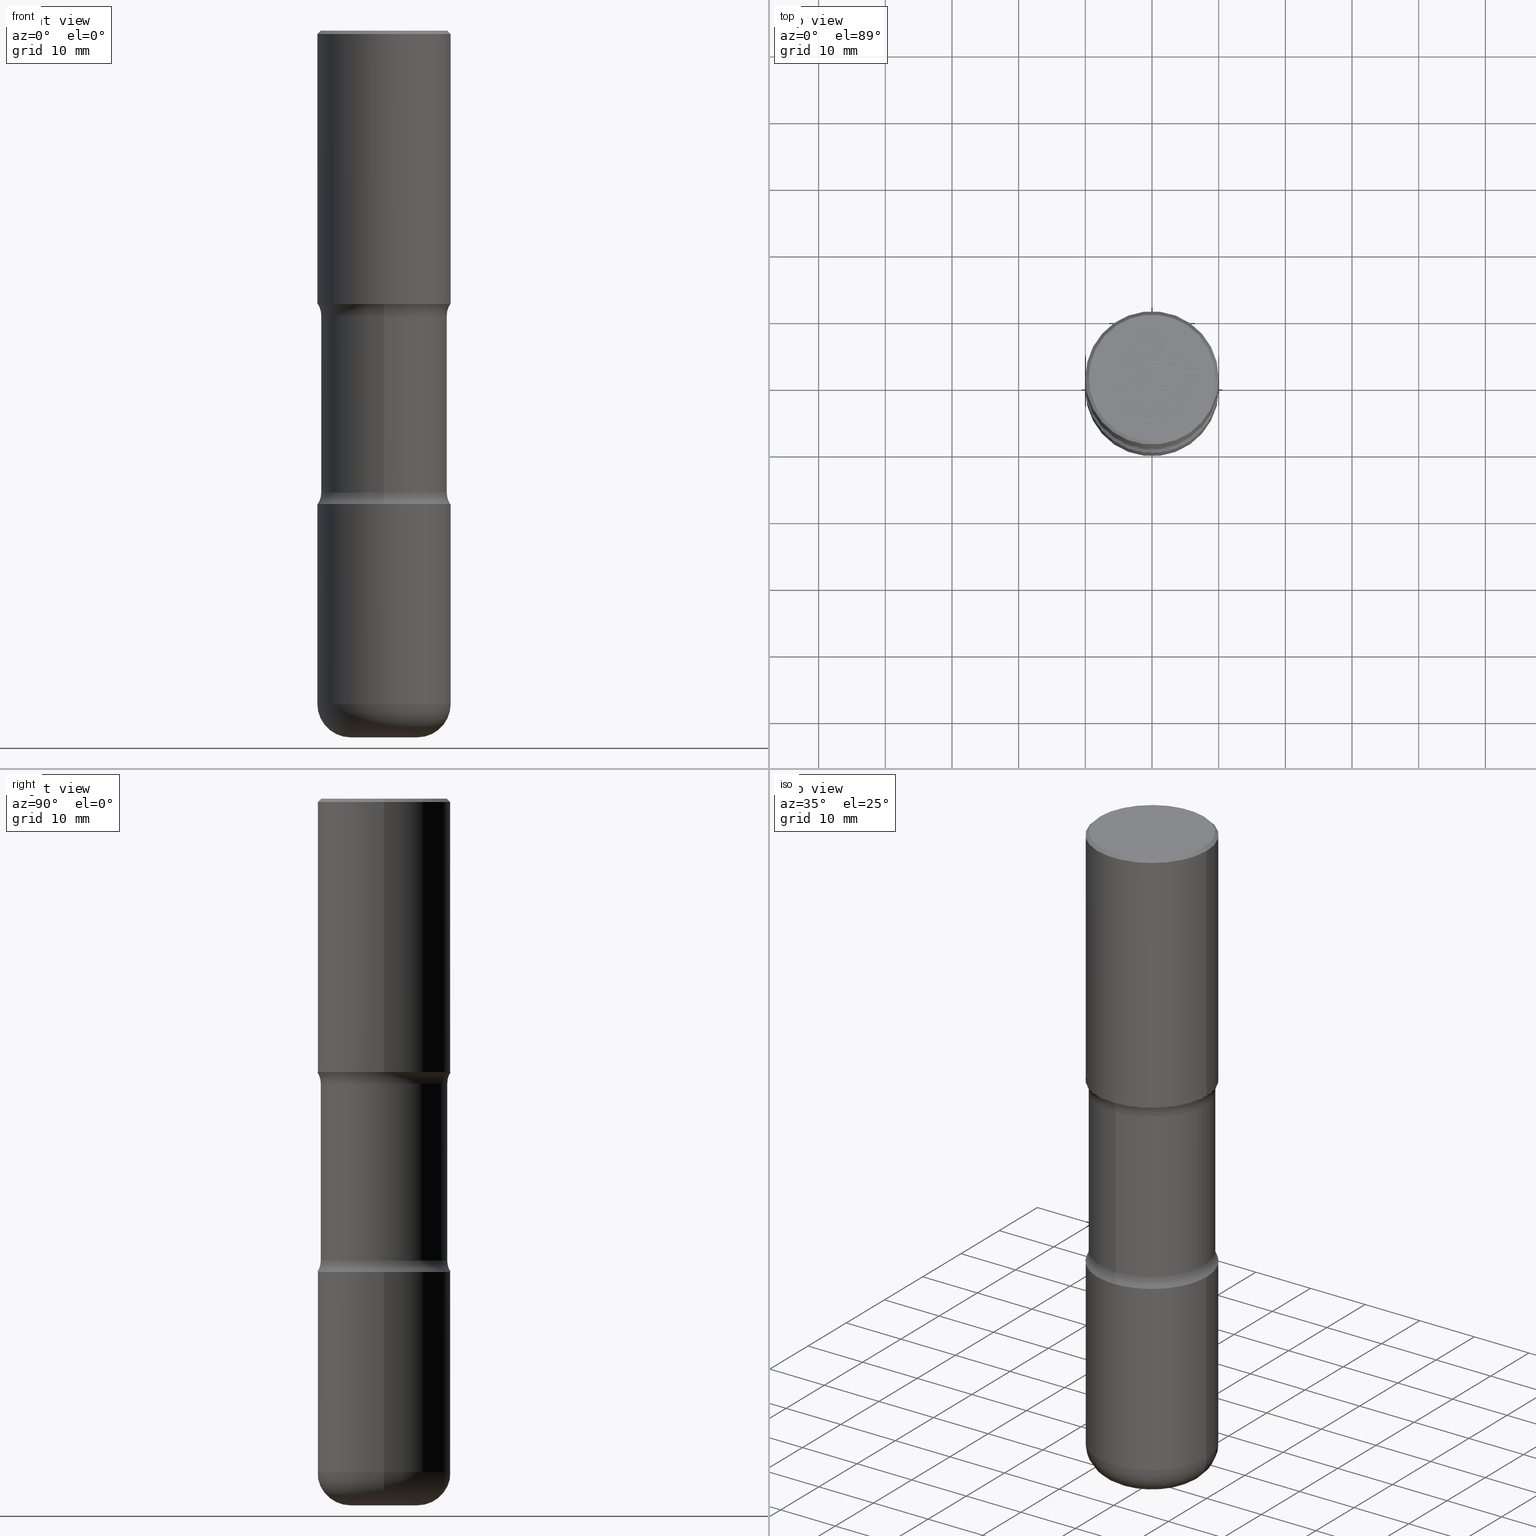
[diagram: canonical four-view strip — front | top / right | iso, engineering-drawing reading convention]
A machine part, canonical four-view strip (front | top / right | iso — engineering-drawing reading convention). The complete STEP part file that produces these views, byte-faithful:
ISO-10303-21;
HEADER;
FILE_DESCRIPTION (( 'STEP AP203' ),
    '1' );
FILE_NAME ('44997.STEP',
    '2024-03-02T04:28:52',
    ( '' ),
    ( '' ),
    'SwSTEP 2.0',
    'SolidWorks 2023',
    '' );
FILE_SCHEMA (( 'CONFIG_CONTROL_DESIGN' ));
ENDSEC;

DATA;
#1 = PERSON ( 'UNSPECIFIED', 'UNSPECIFIED', 'UNSPECIFIED', ('UNSPECIFIED'), ('UNSPECIFIED'), ('UNSPECIFIED') ) ;
#2 = DIRECTION ( 'NONE',  ( 6.860497997771532351E-15, 1.000000000000000000, 0.000000000000000000 ) ) ;
#3 = DIRECTION ( 'NONE',  ( 1.000000000000000000, -6.982962677686266711E-15, 0.000000000000000000 ) ) ;
#4 = ADVANCED_FACE ( 'NONE', ( #287 ), #169, .F. ) ;
#5 = CARTESIAN_POINT ( 'NONE',  ( -0.3937000000000003830, 2.797406750687517153E-15, -1.936584745033358137E-29 ) ) ;
#6 = CLOSED_SHELL ( 'NONE', ( #304, #487, #409, #138, #331, #45, #387, #517 ) ) ;
#7 = TOROIDAL_SURFACE ( 'NONE', #460, 0.4985000000000002762, 0.1250000000000001665 ) ;
#8 = DIRECTION ( 'NONE',  ( 6.982962677686265922E-15, 1.000000000000000000, -2.775563112689115117E-15 ) ) ;
#9 = APPROVAL_DATE_TIME ( #436, #512 ) ;
#10 = FACE_OUTER_BOUND ( 'NONE', #268, .T. ) ;
#11 = EDGE_CURVE ( 'NONE', #167, #198, #335, .T. ) ;
#12 = EDGE_LOOP ( 'NONE', ( #240, #161, #22, #397 ) ) ;
#13 = COORDINATED_UNIVERSAL_TIME_OFFSET ( 5, 0, .BEHIND. ) ;
#14 = FACE_OUTER_BOUND ( 'NONE', #525, .T. ) ;
#15 = EDGE_LOOP ( 'NONE', ( #108, #486 ) ) ;
#16 = AXIS2_PLACEMENT_3D ( 'NONE', #340, #427, #518 ) ;
#17 = LOCAL_TIME ( 23, 28, 52.00000000000000000, #13 ) ;
#18 = CARTESIAN_POINT ( 'NONE',  ( 3.947231200063429727E-29, -5.635600029026721857E-15, -1.614100000000000090 ) ) ;
#19 = EDGE_LOOP ( 'NONE', ( #74, #60, #300, #379 ) ) ;
#20 = EDGE_CURVE ( 'NONE', #401, #432, #361, .T. ) ;
#21 = DIRECTION ( 'NONE',  ( 1.000000000000000000, -6.860497997771530774E-15, 4.841709315645876741E-29 ) ) ;
#22 = ORIENTED_EDGE ( 'NONE', *, *, #38, .F. ) ;
#23 = FACE_OUTER_BOUND ( 'NONE', #151, .T. ) ;
#24 = ORIENTED_EDGE ( 'NONE', *, *, #453, .F. ) ;
#25 = APPROVAL_STATUS ( 'not_yet_approved' ) ;
#26 = CIRCLE ( 'NONE', #305, 0.1968000000000006133 ) ;
#27 = DIRECTION ( 'NONE',  ( 2.497382066111305685E-29, -3.417138595909611452E-15, -1.000000000000000000 ) ) ;
#28 = EDGE_LOOP ( 'NONE', ( #452, #456, #228, #482 ) ) ;
#29 = DIRECTION ( 'NONE',  ( 2.497382066111305685E-29, -3.417138595909611452E-15, -1.000000000000000000 ) ) ;
#30 = EDGE_CURVE ( 'NONE', #221, #497, #374, .T. ) ;
#31 = CARTESIAN_POINT ( 'NONE',  ( 4.890937612370289799E-31, -6.982962677686315028E-17, -0.02000000000000006981 ) ) ;
#32 = DIRECTION ( 'NONE',  ( -2.497382066111305685E-29, 3.417138595909611452E-15, 1.000000000000000000 ) ) ;
#33 = CIRCLE ( 'NONE', #103, 0.3735000000000001097 ) ;
#34 = AXIS2_PLACEMENT_3D ( 'NONE', #490, #359, #524 ) ;
#35 = LINE ( 'NONE', #551, #281 ) ;
#36 = CC_DESIGN_APPROVAL ( #266, ( #157 ) ) ;
#37 = CARTESIAN_POINT ( 'NONE',  ( 2.609533152651358987E-15, 0.3737000000000002542, -1.298363807590533784E-15 ) ) ;
#38 = EDGE_CURVE ( 'NONE', #111, #277, #447, .T. ) ;
#39 = DIRECTION ( 'NONE',  ( 0.7071067811865459074, -7.319954787623249734E-15, -0.7071067811865491270 ) ) ;
#40 = FACE_OUTER_BOUND ( 'NONE', #279, .T. ) ;
#41 = CARTESIAN_POINT ( 'NONE',  ( 0.3937000000000004385, -2.749192406205086372E-15, 1.919750796630862133E-29 ) ) ;
#42 = AXIS2_PLACEMENT_3D ( 'NONE', #166, #418, #325 ) ;
#43 = DIRECTION ( 'NONE',  ( 6.982962677686265922E-15, 1.000000000000000000, -3.469453890861391629E-15 ) ) ;
#44 = CARTESIAN_POINT ( 'NONE',  ( 2.608136560115861621E-15, 0.3734999999999941700, -1.682231930840100809 ) ) ;
#45 = ADVANCED_FACE ( 'NONE', ( #40 ), #474, .F. ) ;
#46 = DIRECTION ( 'NONE',  ( -2.445468806185136877E-29, 3.491481338843145188E-15, 1.000000000000000000 ) ) ;
#47 = EDGE_LOOP ( 'NONE', ( #96, #149, #258, #286 ) ) ;
#48 = DIRECTION ( 'NONE',  ( 2.497382066111305685E-29, -3.417138595909611452E-15, -1.000000000000000000 ) ) ;
#49 = AXIS2_PLACEMENT_3D ( 'NONE', #215, #175, #337 ) ;
#50 = LOCAL_TIME ( 23, 28, 52.00000000000000000, #72 ) ;
#51 = EDGE_CURVE ( 'NONE', #555, #93, #33, .T. ) ;
#52 = PLANE ( 'NONE',  #58 ) ;
#53 = DIRECTION ( 'NONE',  ( 1.000000000000000000, -6.982962677686266711E-15, 4.876176775795935793E-29 ) ) ;
#54 = ORIENTED_EDGE ( 'NONE', *, *, #195, .F. ) ;
#55 = DIRECTION ( 'NONE',  ( 2.497382066111305685E-29, -3.417138595909611452E-15, -1.000000000000000000 ) ) ;
#56 = AXIS2_PLACEMENT_3D ( 'NONE', #553, #332, #369 ) ;
#57 = ORIENTED_EDGE ( 'NONE', *, *, #11, .T. ) ;
#58 = AXIS2_PLACEMENT_3D ( 'NONE', #18, #314, #154 ) ;
#59 = CARTESIAN_POINT ( 'NONE',  ( 3.947231200063429727E-29, -5.635600029026721857E-15, -1.614100000000000090 ) ) ;
#60 = ORIENTED_EDGE ( 'NONE', *, *, #469, .T. ) ;
#61 = CARTESIAN_POINT ( 'NONE',  ( 9.723917614033958359E-29, -1.388317724764199912E-14, -3.976299999999999724 ) ) ;
#62 = PERSON_AND_ORGANIZATION ( #1, #528 ) ;
#63 = ORIENTED_EDGE ( 'NONE', *, *, #426, .T. ) ;
#64 = DIRECTION ( 'NONE',  ( 2.497382066111305685E-29, -3.417138595909611452E-15, -1.000000000000000000 ) ) ;
#65 = DATE_TIME_ROLE ( 'classification_date' ) ;
#66 = LINE ( 'NONE', #378, #390 ) ;
#67 = ADVANCED_FACE ( 'NONE', ( #414 ), #117, .T. ) ;
#68 = PERSON_AND_ORGANIZATION_ROLE ( 'classification_officer' ) ;
#69 = DIRECTION ( 'NONE',  ( 6.982962677686265922E-15, 1.000000000000000000, -3.657092360996335267E-15 ) ) ;
#70 =( LENGTH_UNIT ( ) NAMED_UNIT ( * ) SI_UNIT ( $, .METRE. ) );
#71 = EDGE_LOOP ( 'NONE', ( #508, #124, #541, #489 ) ) ;
#72 = COORDINATED_UNIVERSAL_TIME_OFFSET ( 5, 0, .BEHIND. ) ;
#73 = CARTESIAN_POINT ( 'NONE',  ( 2.749192406205152242E-15, 0.3936999999999903910, -2.795200000000001239 ) ) ;
#74 = ORIENTED_EDGE ( 'NONE', *, *, #557, .T. ) ;
#75 = DESIGN_CONTEXT ( 'detailed design', #159, 'design' ) ;
#76 = CARTESIAN_POINT ( 'NONE',  ( 0.000000000000000000, 0.000000000000000000, 0.000000000000000000 ) ) ;
#77 = CIRCLE ( 'NONE', #42, 0.1249999999999999584 ) ;
#78 =( GEOMETRIC_REPRESENTATION_CONTEXT ( 3 ) GLOBAL_UNCERTAINTY_ASSIGNED_CONTEXT ( ( #121 ) ) GLOBAL_UNIT_ASSIGNED_CONTEXT ( ( #109, #201, #509 ) ) REPRESENTATION_CONTEXT ( 'NONE', 'WORKASPACE' ) );
#79 = DIRECTION ( 'NONE',  ( -6.982962677686266711E-15, -1.000000000000000000, 3.491481338843145583E-15 ) ) ;
#80 = DIRECTION ( 'NONE',  ( 1.000000000000000000, -6.982962677686264344E-15, 4.883557194083112340E-29 ) ) ;
#81 = FACE_OUTER_BOUND ( 'NONE', #323, .T. ) ;
#82 = AXIS2_PLACEMENT_3D ( 'NONE', #511, #129, #80 ) ;
#83 = EDGE_CURVE ( 'NONE', #531, #432, #504, .T. ) ;
#84 = DIRECTION ( 'NONE',  ( 1.000000000000000000, -6.982962677686266711E-15, 4.876176775795935793E-29 ) ) ;
#85 = FACE_OUTER_BOUND ( 'NONE', #366, .T. ) ;
#86 = LENGTH_MEASURE_WITH_UNIT ( LENGTH_MEASURE( 0.02539999999999999897 ), #70 );
#87 = DIRECTION ( 'NONE',  ( 2.497382066111305685E-29, -3.417138595909611452E-15, -1.000000000000000000 ) ) ;
#88 = PRODUCT_RELATED_PRODUCT_CATEGORY ( 'detail', '', ( #321 ) ) ;
#89 = COORDINATED_UNIVERSAL_TIME_OFFSET ( 5, 0, .BEHIND. ) ;
#90 = EDGE_CURVE ( 'NONE', #93, #111, #372, .T. ) ;
#91 = CARTESIAN_POINT ( 'NONE',  ( 6.835574407048695164E-29, -9.759388638334361670E-15, -2.795200000000000351 ) ) ;
#92 = CIRCLE ( 'NONE', #173, 0.3937000000000006605 ) ;
#93 = VERTEX_POINT ( 'NONE', #44 ) ;
#94 = AXIS2_PLACEMENT_3D ( 'NONE', #461, #413, #543 ) ;
#95 = CYLINDRICAL_SURFACE ( 'NONE', #385, 0.3937000000000004385 ) ;
#96 = ORIENTED_EDGE ( 'NONE', *, *, #147, .F. ) ;
#97 = PERSON_AND_ORGANIZATION ( #1, #528 ) ;
#98 = ADVANCED_BREP_SHAPE_REPRESENTATION ( '44997', ( #542, #172, #165, #552 ), #78 ) ;
#99 = FACE_OUTER_BOUND ( 'NONE', #156, .T. ) ;
#100 = ORIENTED_EDGE ( 'NONE', *, *, #370, .T. ) ;
#101 = CARTESIAN_POINT ( 'NONE',  ( 0.3737000000000002542, -2.667287895133369937E-15, 1.280553747031968579E-17 ) ) ;
#102 = ADVANCED_FACE ( 'NONE', ( #431 ), #479, .T. ) ;
#103 = AXIS2_PLACEMENT_3D ( 'NONE', #171, #334, #69 ) ;
#104 = VERTEX_POINT ( 'NONE', #182 ) ;
#105 = VECTOR ( 'NONE', #389, 39.37007874015748143 ) ;
#106 = PRODUCT_DEFINITION_FORMATION_WITH_SPECIFIED_SOURCE ( 'ANY', '', #321, .NOT_KNOWN. ) ;
#107 = CARTESIAN_POINT ( 'NONE',  ( 0.3937000000000004385, -8.384792435231807440E-15, -1.614100000000000090 ) ) ;
#108 = ORIENTED_EDGE ( 'NONE', *, *, #557, .F. ) ;
#109 =( CONVERSION_BASED_UNIT ( 'INCH', #86 ) LENGTH_UNIT ( ) NAMED_UNIT ( #119 ) );
#110 = CARTESIAN_POINT ( 'NONE',  ( -2.631687031945092476E-15, -0.3735000000000094911, -2.727068069159900521 ) ) ;
#111 = VERTEX_POINT ( 'NONE', #294 ) ;
#112 = PERSON_AND_ORGANIZATION ( #1, #528 ) ;
#113 = EDGE_CURVE ( 'NONE', #277, #111, #428, .T. ) ;
#114 = DIRECTION ( 'NONE',  ( 6.982962677686265922E-15, 1.000000000000000000, -3.469453890861391629E-15 ) ) ;
#115 = CALENDAR_DATE ( 2024, 1, 3 ) ;
#116 = ORIENTED_EDGE ( 'NONE', *, *, #158, .T. ) ;
#117 = TOROIDAL_SURFACE ( 'NONE', #82, 0.1968000000000005856, 0.1969000000000001582 ) ;
#118 = APPROVAL_ROLE ( '' ) ;
#119 = DIMENSIONAL_EXPONENTS ( 1.000000000000000000, 0.000000000000000000, 0.000000000000000000, 0.000000000000000000, 0.000000000000000000, 0.000000000000000000, 0.000000000000000000 ) ;
#120 = EDGE_LOOP ( 'NONE', ( #412, #231, #425, #144 ) ) ;
#121 = UNCERTAINTY_MEASURE_WITH_UNIT (LENGTH_MEASURE( 1.000000000000000082E-05 ), #109, 'distance_accuracy_value', 'NONE');
#122 = DIRECTION ( 'NONE',  ( -1.000000000000000000, 7.105427357601006592E-15, 0.000000000000000000 ) ) ;
#123 = EDGE_CURVE ( 'NONE', #104, #355, #326, .T. ) ;
#124 = ORIENTED_EDGE ( 'NONE', *, *, #132, .F. ) ;
#125 = CARTESIAN_POINT ( 'NONE',  ( 1.027696689415007474E-28, -1.446820562349780459E-14, -4.173200000000000465 ) ) ;
#126 = CARTESIAN_POINT ( 'NONE',  ( 0.1968000000000005856, -1.525742430261066195E-14, -3.976299999999999724 ) ) ;
#127 = VECTOR ( 'NONE', #46, 39.37007874015748143 ) ;
#128 = LOCAL_TIME ( 23, 28, 52.00000000000000000, #301 ) ;
#129 = DIRECTION ( 'NONE',  ( -2.445468806185136597E-29, 3.491481338843145583E-15, 1.000000000000000000 ) ) ;
#130 = CARTESIAN_POINT ( 'NONE',  ( -2.700978061722584594E-15, -0.3937000000000099309, -2.795199999999999019 ) ) ;
#131 = ORIENTED_EDGE ( 'NONE', *, *, #188, .T. ) ;
#132 = EDGE_CURVE ( 'NONE', #491, #252, #292, .T. ) ;
#133 = FACE_OUTER_BOUND ( 'NONE', #28, .T. ) ;
#134 = AXIS2_PLACEMENT_3D ( 'NONE', #126, #79, #424 ) ;
#135 = AXIS2_PLACEMENT_3D ( 'NONE', #362, #485, #349 ) ;
#136 = DIRECTION ( 'NONE',  ( -2.445468806185136597E-29, 3.491481338843145583E-15, 1.000000000000000000 ) ) ;
#137 = CARTESIAN_POINT ( 'NONE',  ( 0.3937000000000002164, -2.770807688499516917E-15, -0.02000000000000006981 ) ) ;
#138 = ADVANCED_FACE ( 'NONE', ( #85 ), #186, .F. ) ;
#139 = ORIENTED_EDGE ( 'NONE', *, *, #346, .T. ) ;
#140 = LINE ( 'NONE', #41, #222 ) ;
#141 = DIRECTION ( 'NONE',  ( 2.497382066111305685E-29, -3.417138595909611452E-15, -1.000000000000000000 ) ) ;
#142 = CONICAL_SURFACE ( 'NONE', #477, 0.3937000000000002164, 0.7853981633974460586 ) ;
#143 = CIRCLE ( 'NONE', #34, 0.3937000000000004385 ) ;
#144 = ORIENTED_EDGE ( 'NONE', *, *, #113, .F. ) ;
#145 = DIRECTION ( 'NONE',  ( 2.497382066111305685E-29, -3.417138595909611452E-15, -1.000000000000000000 ) ) ;
#146 = ORIENTED_EDGE ( 'NONE', *, *, #147, .T. ) ;
#147 = EDGE_CURVE ( 'NONE', #252, #491, #199, .T. ) ;
#148 = FACE_OUTER_BOUND ( 'NONE', #71, .T. ) ;
#149 = ORIENTED_EDGE ( 'NONE', *, *, #358, .T. ) ;
#150 = DIRECTION ( 'NONE',  ( 2.497382066111305685E-29, -3.417138595909611452E-15, -1.000000000000000000 ) ) ;
#151 = EDGE_LOOP ( 'NONE', ( #248, #506, #131, #360 ) ) ;
#152 = CIRCLE ( 'NONE', #398, 0.1968000000000006133 ) ;
#153 = TOROIDAL_SURFACE ( 'NONE', #328, 0.1968000000000005856, 0.1969000000000001582 ) ;
#154 = DIRECTION ( 'NONE',  ( 1.000000000000000000, -6.982962677686265922E-15, 4.876176775795935793E-29 ) ) ;
#155 = PERSON_AND_ORGANIZATION_ROLE ( 'creator' ) ;
#156 = EDGE_LOOP ( 'NONE', ( #100, #442, #420, #329 ) ) ;
#157 = PRODUCT_DEFINITION ( 'UNKNOWN', '', #106, #75 ) ;
#158 = EDGE_CURVE ( 'NONE', #406, #187, #341, .T. ) ;
#159 = APPLICATION_CONTEXT ( 'configuration controlled 3d designs of mechanical parts and assemblies' ) ;
#160 = CARTESIAN_POINT ( 'NONE',  ( 0.3937000000000007160, -1.663236965384708707E-14, -3.976299999999999724 ) ) ;
#161 = ORIENTED_EDGE ( 'NONE', *, *, #445, .T. ) ;
#162 = DIRECTION ( 'NONE',  ( 6.982962677686265922E-15, 1.000000000000000000, -3.417138595909611452E-15 ) ) ;
#163 = ORIENTED_EDGE ( 'NONE', *, *, #527, .F. ) ;
#164 = DIRECTION ( 'NONE',  ( 1.000000000000000000, 0.000000000000000000, 0.000000000000000000 ) ) ;
#165 = MANIFOLD_SOLID_BREP ( 'Body-Move/Copy2[4]', #6 ) ;
#166 = CARTESIAN_POINT ( 'NONE',  ( 3.481006894826670204E-15, 0.4984999999999905063, -2.727068069159903185 ) ) ;
#167 = VERTEX_POINT ( 'NONE', #476 ) ;
#168 = FACE_OUTER_BOUND ( 'NONE', #120, .T. ) ;
#169 = PLANE ( 'NONE',  #296 ) ;
#170 = CARTESIAN_POINT ( 'NONE',  ( 3.481006894826646143E-15, 0.4984999999999942810, -1.682231930840101253 ) ) ;
#171 = CARTESIAN_POINT ( 'NONE',  ( 4.056067910974230799E-29, -5.956222493193065901E-15, -1.682231930840099476 ) ) ;
#172 = MANIFOLD_SOLID_BREP ( 'Body-Move/Copy2[2]', #313 ) ;
#173 = AXIS2_PLACEMENT_3D ( 'NONE', #61, #235, #395 ) ;
#174 = CC_DESIGN_SECURITY_CLASSIFICATION ( #365, ( #106 ) ) ;
#175 = DIRECTION ( 'NONE',  ( -2.445468806185136597E-29, 3.491481338843145583E-15, 1.000000000000000000 ) ) ;
#176 = CC_DESIGN_PERSON_AND_ORGANIZATION_ASSIGNMENT ( #455, #394, ( #106 ) ) ;
#177 = CARTESIAN_POINT ( 'NONE',  ( -2.700978061722616937E-15, -0.3937000000000062117, -1.614099999999998758 ) ) ;
#178 = DIRECTION ( 'NONE',  ( -1.000000000000000000, 6.982962677686266711E-15, 0.000000000000000000 ) ) ;
#179 = EDGE_CURVE ( 'NONE', #104, #167, #298, .T. ) ;
#180 = AXIS2_PLACEMENT_3D ( 'NONE', #170, #470, #333 ) ;
#181 = CARTESIAN_POINT ( 'NONE',  ( 1.020543042197181255E-28, -1.457064992326021483E-14, -4.173200000000000465 ) ) ;
#182 = CARTESIAN_POINT ( 'NONE',  ( -0.3937000000000004385, -5.530807721427478371E-17, -1.614100000000000090 ) ) ;
#183 = ORIENTED_EDGE ( 'NONE', *, *, #246, .T. ) ;
#184 = DATE_AND_TIME ( #308, #17 ) ;
#185 = CARTESIAN_POINT ( 'NONE',  ( -3.131554243005659264E-46, 4.471029511141341874E-32, 1.280553747030123384E-17 ) ) ;
#186 = TOROIDAL_SURFACE ( 'NONE', #207, 0.4985000000000002762, 0.1250000000000001665 ) ;
#187 = VERTEX_POINT ( 'NONE', #388 ) ;
#188 = EDGE_CURVE ( 'NONE', #497, #401, #140, .T. ) ;
#189 = DIRECTION ( 'NONE',  ( -1.000000000000000000, 6.982962677686265922E-15, -4.876176775795935793E-29 ) ) ;
#190 = EDGE_LOOP ( 'NONE', ( #545, #24 ) ) ;
#191 = FACE_OUTER_BOUND ( 'NONE', #15, .T. ) ;
#192 = ORIENTED_EDGE ( 'NONE', *, *, #527, .T. ) ;
#193 = CC_DESIGN_PERSON_AND_ORGANIZATION_ASSIGNMENT ( #112, #280, ( #157 ) ) ;
#194 = DIRECTION ( 'NONE',  ( -2.445468806185136597E-29, 3.491481338843145583E-15, 1.000000000000000000 ) ) ;
#195 = EDGE_CURVE ( 'NONE', #555, #245, #410, .T. ) ;
#196 = APPROVAL_ROLE ( '' ) ;
#197 = CLOSED_SHELL ( 'NONE', ( #324, #536, #285, #67, #377, #513 ) ) ;
#198 = VERTEX_POINT ( 'NONE', #137 ) ;
#199 = CIRCLE ( 'NONE', #241, 0.3937000000000002164 ) ;
#200 = DIRECTION ( 'NONE',  ( -2.445468806185136597E-29, 3.491481338843145583E-15, 1.000000000000000000 ) ) ;
#201 =( NAMED_UNIT ( * ) PLANE_ANGLE_UNIT ( ) SI_UNIT ( $, .RADIAN. ) );
#202 = DIRECTION ( 'NONE',  ( -1.000000000000000000, 6.982962677686265922E-15, -4.876176775795935793E-29 ) ) ;
#203 = CARTESIAN_POINT ( 'NONE',  ( -0.3937000000000007160, -1.108577049695447881E-14, -3.976299999999999724 ) ) ;
#204 = DIRECTION ( 'NONE',  ( -2.445468806185136877E-29, 3.491481338843145188E-15, 1.000000000000000000 ) ) ;
#205 = DIRECTION ( 'NONE',  ( 2.497382066111305685E-29, -3.417138595909611452E-15, -1.000000000000000000 ) ) ;
#206 = ORIENTED_EDGE ( 'NONE', *, *, #311, .T. ) ;
#207 = AXIS2_PLACEMENT_3D ( 'NONE', #523, #560, #435 ) ;
#208 = AXIS2_PLACEMENT_3D ( 'NONE', #507, #381, #122 ) ;
#209 = DIRECTION ( 'NONE',  ( 2.438088387897960049E-29, -3.491481338843145188E-15, -1.000000000000000000 ) ) ;
#210 = EDGE_LOOP ( 'NONE', ( #450, #350, #347, #357 ) ) ;
#211 = DATE_AND_TIME ( #422, #50 ) ;
#212 = CARTESIAN_POINT ( 'NONE',  ( -0.3937000000000002164, -9.023876192300660874E-15, -2.795200000000000351 ) ) ;
#213 = DIRECTION ( 'NONE',  ( -6.982962677686265922E-15, -1.000000000000000000, 3.417138595909611452E-15 ) ) ;
#214 = EDGE_CURVE ( 'NONE', #274, #221, #152, .T. ) ;
#215 = CARTESIAN_POINT ( 'NONE',  ( 0.000000000000000000, 0.000000000000000000, 0.000000000000000000 ) ) ;
#216 = CONICAL_SURFACE ( 'NONE', #526, 0.3937000000000002164, 0.7853981633974460586 ) ;
#217 = LOCAL_TIME ( 23, 28, 52.00000000000000000, #457 ) ;
#218 = CARTESIAN_POINT ( 'NONE',  ( 2.608136560115922758E-15, 0.3734999999999855103, -4.173200000000001353 ) ) ;
#219 = EDGE_CURVE ( 'NONE', #312, #245, #559, .T. ) ;
#220 = CARTESIAN_POINT ( 'NONE',  ( -3.419958251889069808E-15, -0.4985000000000063269, -1.682231930840097922 ) ) ;
#221 = VERTEX_POINT ( 'NONE', #224 ) ;
#222 = VECTOR ( 'NONE', #343, 39.37007874015748143 ) ;
#223 = CIRCLE ( 'NONE', #94, 0.3937000000000006605 ) ;
#224 = CARTESIAN_POINT ( 'NONE',  ( 0.1968000000000006133, -1.594489697822887608E-14, -4.173200000000000465 ) ) ;
#225 = APPROVAL_STATUS ( 'not_yet_approved' ) ;
#226 = PLANE ( 'NONE',  #297 ) ;
#227 = DIRECTION ( 'NONE',  ( 6.982962677686265922E-15, 1.000000000000000000, -3.417138595909611452E-15 ) ) ;
#228 = ORIENTED_EDGE ( 'NONE', *, *, #246, .F. ) ;
#229 = CARTESIAN_POINT ( 'NONE',  ( 1.027696689415007474E-28, -1.446820562349780459E-14, -4.173200000000000465 ) ) ;
#230 = AXIS2_PLACEMENT_3D ( 'NONE', #229, #150, #539 ) ;
#231 = ORIENTED_EDGE ( 'NONE', *, *, #51, .T. ) ;
#232 = LINE ( 'NONE', #535, #263 ) ;
#233 = ORIENTED_EDGE ( 'NONE', *, *, #453, .T. ) ;
#234 = ADVANCED_FACE ( 'NONE', ( #133 ), #383, .T. ) ;
#235 = DIRECTION ( 'NONE',  ( -2.445468806185136597E-29, 3.491481338843145583E-15, 1.000000000000000000 ) ) ;
#236 = APPROVAL_ROLE ( '' ) ;
#237 = ORIENTED_EDGE ( 'NONE', *, *, #219, .T. ) ;
#238 = CYLINDRICAL_SURFACE ( 'NONE', #493, 0.3734999999999999987 ) ;
#239 = PERSON_AND_ORGANIZATION ( #1, #528 ) ;
#240 = ORIENTED_EDGE ( 'NONE', *, *, #549, .T. ) ;
#241 = AXIS2_PLACEMENT_3D ( 'NONE', #516, #87, #392 ) ;
#242 = DIRECTION ( 'NONE',  ( 6.982962677686265922E-15, 1.000000000000000000, -3.417138595909611452E-15 ) ) ;
#243 = CARTESIAN_POINT ( 'NONE',  ( 4.126794496352893348E-29, -1.363851564462866640E-14, -2.795199999999999907 ) ) ;
#244 = LINE ( 'NONE', #510, #438 ) ;
#245 = VERTEX_POINT ( 'NONE', #177 ) ;
#246 = EDGE_CURVE ( 'NONE', #198, #167, #538, .T. ) ;
#247 = PLANE ( 'NONE',  #264 ) ;
#248 = ORIENTED_EDGE ( 'NONE', *, *, #83, .F. ) ;
#249 = AXIS2_PLACEMENT_3D ( 'NONE', #267, #141, #227 ) ;
#250 = DIRECTION ( 'NONE',  ( 0.000000000000000000, 0.000000000000000000, 1.000000000000000000 ) ) ;
#251 = CARTESIAN_POINT ( 'NONE',  ( 9.723917614033958359E-29, -1.388317724764199912E-14, -3.976299999999999724 ) ) ;
#252 = VERTEX_POINT ( 'NONE', #130 ) ;
#253 = CARTESIAN_POINT ( 'NONE',  ( -0.3937000000000004385, 2.797406750687517547E-15, -1.936584745033358417E-29 ) ) ;
#254 = CARTESIAN_POINT ( 'NONE',  ( 4.890937612370289799E-31, -6.982962677686315028E-17, -0.02000000000000006981 ) ) ;
#255 = VECTOR ( 'NONE', #204, 39.37007874015748143 ) ;
#256 = APPROVAL_PERSON_ORGANIZATION ( #262, #512, #196 ) ;
#257 = CARTESIAN_POINT ( 'NONE',  ( 3.947231200063429727E-29, -5.635600029026721857E-15, -1.614100000000000090 ) ) ;
#258 = ORIENTED_EDGE ( 'NONE', *, *, #113, .T. ) ;
#259 = DIRECTION ( 'NONE',  ( 1.000000000000000000, -6.982962677686266711E-15, 4.876212485538972316E-29 ) ) ;
#260 = ORIENTED_EDGE ( 'NONE', *, *, #311, .F. ) ;
#261 = DIRECTION ( 'NONE',  ( 1.000000000000000000, -6.982962677686269866E-15, 0.000000000000000000 ) ) ;
#262 = PERSON_AND_ORGANIZATION ( #1, #528 ) ;
#263 = VECTOR ( 'NONE', #449, 39.37007874015748143 ) ;
#264 = AXIS2_PLACEMENT_3D ( 'NONE', #556, #209, #288 ) ;
#265 = DIRECTION ( 'NONE',  ( 1.000000000000000000, -6.860497997771530774E-15, 4.841709315645876741E-29 ) ) ;
#266 = APPROVAL ( #25, 'UNSPECIFIED' ) ;
#267 = CARTESIAN_POINT ( 'NONE',  ( 6.621268914021895076E-29, -9.589803473068410880E-15, -2.727068069159901409 ) ) ;
#268 = EDGE_LOOP ( 'NONE', ( #537, #393 ) ) ;
#269 = DIRECTION ( 'NONE',  ( -2.445468806185136597E-29, 3.491481338843145583E-15, 1.000000000000000000 ) ) ;
#270 = ORIENTED_EDGE ( 'NONE', *, *, #51, .F. ) ;
#271 = AXIS2_PLACEMENT_3D ( 'NONE', #243, #32, #213 ) ;
#272 = CARTESIAN_POINT ( 'NONE',  ( 0.000000000000000000, 0.000000000000000000, 0.000000000000000000 ) ) ;
#273 = TOROIDAL_SURFACE ( 'NONE', #249, 0.4985000000000001097, 0.1249999999999999861 ) ;
#274 = VERTEX_POINT ( 'NONE', #475 ) ;
#275 = ADVANCED_FACE ( 'NONE', ( #81 ), #142, .T. ) ;
#276 = CARTESIAN_POINT ( 'NONE',  ( 1.020543042197181255E-28, -1.457064992326021483E-14, -4.173200000000000465 ) ) ;
#277 = VERTEX_POINT ( 'NONE', #110 ) ;
#278 = FACE_OUTER_BOUND ( 'NONE', #19, .T. ) ;
#279 = EDGE_LOOP ( 'NONE', ( #404, #146 ) ) ;
#280 = PERSON_AND_ORGANIZATION_ROLE ( 'creator' ) ;
#281 = VECTOR ( 'NONE', #39, 39.37007874015748143 ) ;
#282 = DIRECTION ( 'NONE',  ( 1.000000000000000000, -6.982962677686266711E-15, 0.000000000000000000 ) ) ;
#283 = PRODUCT_DEFINITION_SHAPE ( 'NONE', 'NONE',  #157 ) ;
#284 = CARTESIAN_POINT ( 'NONE',  ( -2.631687031945121663E-15, -0.3735000000000060494, -1.682231930840098144 ) ) ;
#285 = ADVANCED_FACE ( 'NONE', ( #191 ), #494, .T. ) ;
#286 = ORIENTED_EDGE ( 'NONE', *, *, #434, .F. ) ;
#287 = FACE_OUTER_BOUND ( 'NONE', #307, .T. ) ;
#288 = DIRECTION ( 'NONE',  ( -1.000000000000000000, 6.982962677686265922E-15, -4.876176775795935793E-29 ) ) ;
#289 = ORIENTED_EDGE ( 'NONE', *, *, #469, .F. ) ;
#290 = CC_DESIGN_PERSON_AND_ORGANIZATION_ASSIGNMENT ( #62, #68, ( #365 ) ) ;
#291 = EDGE_CURVE ( 'NONE', #187, #167, #232, .T. ) ;
#292 = CIRCLE ( 'NONE', #492, 0.3937000000000002164 ) ;
#293 = AXIS2_PLACEMENT_3D ( 'NONE', #467, #64, #242 ) ;
#294 = CARTESIAN_POINT ( 'NONE',  ( 2.608136560115886471E-15, 0.3734999999999905063, -2.727068069159902741 ) ) ;
#295 = DIRECTION ( 'NONE',  ( -2.445468806185136597E-29, 3.491481338843145583E-15, 1.000000000000000000 ) ) ;
#296 = AXIS2_PLACEMENT_3D ( 'NONE', #37, #472, #202 ) ;
#297 = AXIS2_PLACEMENT_3D ( 'NONE', #59, #55, #403 ) ;
#298 = LINE ( 'NONE', #5, #127 ) ;
#299 = DIRECTION ( 'NONE',  ( -2.445468806185136597E-29, 3.491481338843145583E-15, 1.000000000000000000 ) ) ;
#300 = ORIENTED_EDGE ( 'NONE', *, *, #370, .F. ) ;
#301 = COORDINATED_UNIVERSAL_TIME_OFFSET ( 5, 0, .BEHIND. ) ;
#302 = CARTESIAN_POINT ( 'NONE',  ( 3.885916448764630888E-29, -5.723406242705518712E-15, -1.614100000000000090 ) ) ;
#303 = ORIENTED_EDGE ( 'NONE', *, *, #158, .F. ) ;
#304 = ADVANCED_FACE ( 'NONE', ( #441 ), #439, .T. ) ;
#305 = AXIS2_PLACEMENT_3D ( 'NONE', #546, #200, #503 ) ;
#306 = DIRECTION ( 'NONE',  ( -2.445468806185136597E-29, 3.491481338843145583E-15, 1.000000000000000000 ) ) ;
#307 = EDGE_LOOP ( 'NONE', ( #206, #116 ) ) ;
#308 = CALENDAR_DATE ( 2024, 1, 3 ) ;
#309 = CARTESIAN_POINT ( 'NONE',  ( 2.749192406205125815E-15, 0.3936999999999947764, -1.614100000000001423 ) ) ;
#310 = ORIENTED_EDGE ( 'NONE', *, *, #214, .T. ) ;
#311 = EDGE_CURVE ( 'NONE', #187, #406, #550, .T. ) ;
#312 = VERTEX_POINT ( 'NONE', #309 ) ;
#313 = CLOSED_SHELL ( 'NONE', ( #234, #275, #417, #4, #339, #102 ) ) ;
#314 = DIRECTION ( 'NONE',  ( -2.438088387897960049E-29, 3.491481338843145188E-15, 1.000000000000000000 ) ) ;
#315 = CC_DESIGN_APPROVAL ( #512, ( #106 ) ) ;
#316 = ORIENTED_EDGE ( 'NONE', *, *, #291, .T. ) ;
#317 = DIRECTION ( 'NONE',  ( 1.000000000000000000, -6.982962677686266711E-15, 4.876176775795935793E-29 ) ) ;
#318 = DATE_TIME_ROLE ( 'creation_date' ) ;
#319 = ORIENTED_EDGE ( 'NONE', *, *, #496, .F. ) ;
#320 = PERSON_AND_ORGANIZATION ( #1, #528 ) ;
#321 = PRODUCT ( '44997', '44997', '', ( #548 ) ) ;
#322 = DIRECTION ( 'NONE',  ( 6.982962677686265922E-15, 1.000000000000000000, -3.657092360996335267E-15 ) ) ;
#323 = EDGE_LOOP ( 'NONE', ( #303, #63, #183, #533 ) ) ;
#324 = ADVANCED_FACE ( 'NONE', ( #99 ), #400, .T. ) ;
#325 = DIRECTION ( 'NONE',  ( -6.982962677686265133E-15, -1.000000000000000000, 0.000000000000000000 ) ) ;
#326 = CIRCLE ( 'NONE', #471, 0.3937000000000004385 ) ;
#327 = DIRECTION ( 'NONE',  ( -2.445468806185136597E-29, 3.491481338843145583E-15, 1.000000000000000000 ) ) ;
#328 = AXIS2_PLACEMENT_3D ( 'NONE', #251, #423, #454 ) ;
#329 = ORIENTED_EDGE ( 'NONE', *, *, #188, .F. ) ;
#330 = DIRECTION ( 'NONE',  ( -1.000000000000000000, 6.982962677686266711E-15, 0.000000000000000000 ) ) ;
#331 = ADVANCED_FACE ( 'NONE', ( #532 ), #226, .F. ) ;
#332 = DIRECTION ( 'NONE',  ( -2.445468806185136597E-29, 3.491481338843145583E-15, 1.000000000000000000 ) ) ;
#333 = DIRECTION ( 'NONE',  ( -6.982962677686265133E-15, -1.000000000000000000, 0.000000000000000000 ) ) ;
#334 = DIRECTION ( 'NONE',  ( 2.497382066111305685E-29, -3.417138595909611452E-15, -1.000000000000000000 ) ) ;
#335 = CIRCLE ( 'NONE', #458, 0.3937000000000002164 ) ;
#336 = AXIS2_PLACEMENT_3D ( 'NONE', #272, #269, #53 ) ;
#337 = DIRECTION ( 'NONE',  ( 1.000000000000000000, -6.982962677686266711E-15, 4.876176775795935793E-29 ) ) ;
#338 = DIRECTION ( 'NONE',  ( 2.445468806185136597E-29, -3.491481338843145583E-15, -1.000000000000000000 ) ) ;
#339 = ADVANCED_FACE ( 'NONE', ( #10 ), #52, .F. ) ;
#340 = CARTESIAN_POINT ( 'NONE',  ( 6.665422944839096374E-29, -9.526572387846816848E-15, -2.727068069159901409 ) ) ;
#341 = CIRCLE ( 'NONE', #419, 0.3737000000000002542 ) ;
#342 = CIRCLE ( 'NONE', #208, 0.1969000000000001860 ) ;
#343 = DIRECTION ( 'NONE',  ( -2.445468806185136877E-29, 3.491481338843145188E-15, 1.000000000000000000 ) ) ;
#344 = CC_DESIGN_DATE_AND_TIME_ASSIGNMENT ( #540, #318, ( #157 ) ) ;
#345 = DIRECTION ( 'NONE',  ( 2.497382066111305685E-29, -3.417138595909611452E-15, -1.000000000000000000 ) ) ;
#346 = EDGE_CURVE ( 'NONE', #432, #401, #375, .T. ) ;
#347 = ORIENTED_EDGE ( 'NONE', *, *, #480, .T. ) ;
#348 = APPROVAL_DATE_TIME ( #411, #534 ) ;
#349 = DIRECTION ( 'NONE',  ( 1.000000000000000000, -6.982962677686269866E-15, 0.000000000000000000 ) ) ;
#350 = ORIENTED_EDGE ( 'NONE', *, *, #123, .T. ) ;
#351 = SHAPE_DEFINITION_REPRESENTATION ( #283, #98 ) ;
#352 = AXIS2_PLACEMENT_3D ( 'NONE', #185, #306, #356 ) ;
#353 = LOCAL_TIME ( 23, 28, 52.00000000000000000, #89 ) ;
#354 = FACE_OUTER_BOUND ( 'NONE', #446, .T. ) ;
#355 = VERTEX_POINT ( 'NONE', #107 ) ;
#356 = DIRECTION ( 'NONE',  ( 1.000000000000000000, -6.982962677686266711E-15, 4.876212485538972316E-29 ) ) ;
#357 = ORIENTED_EDGE ( 'NONE', *, *, #11, .F. ) ;
#358 = EDGE_CURVE ( 'NONE', #252, #277, #448, .T. ) ;
#359 = DIRECTION ( 'NONE',  ( -2.445468806185136597E-29, 3.491481338843145583E-15, 1.000000000000000000 ) ) ;
#360 = ORIENTED_EDGE ( 'NONE', *, *, #346, .F. ) ;
#361 = CIRCLE ( 'NONE', #56, 0.3937000000000002164 ) ;
#362 = CARTESIAN_POINT ( 'NONE',  ( 6.835574407048695164E-29, -9.759388638334361670E-15, -2.795200000000000351 ) ) ;
#363 = AXIS2_PLACEMENT_3D ( 'NONE', #220, #265, #2 ) ;
#364 = CALENDAR_DATE ( 2024, 1, 3 ) ;
#365 = SECURITY_CLASSIFICATION ( '', '', #443 ) ;
#366 = EDGE_LOOP ( 'NONE', ( #54, #465, #192, #237 ) ) ;
#367 = APPLICATION_PROTOCOL_DEFINITION ( 'international standard', 'config_control_design', 1994, #529 ) ;
#368 = DIRECTION ( 'NONE',  ( -2.445468806185136877E-29, 3.491481338843145188E-15, 1.000000000000000000 ) ) ;
#369 = DIRECTION ( 'NONE',  ( 1.000000000000000000, -6.982962677686269866E-15, 0.000000000000000000 ) ) ;
#370 = EDGE_CURVE ( 'NONE', #497, #531, #92, .T. ) ;
#371 = CARTESIAN_POINT ( 'NONE',  ( 4.056067910974230799E-29, -5.956222493193065901E-15, -1.682231930840099476 ) ) ;
#372 = LINE ( 'NONE', #218, #105 ) ;
#373 = FACE_OUTER_BOUND ( 'NONE', #47, .T. ) ;
#374 = CIRCLE ( 'NONE', #134, 0.1969000000000001860 ) ;
#375 = CIRCLE ( 'NONE', #135, 0.3937000000000002164 ) ;
#376 = ORIENTED_EDGE ( 'NONE', *, *, #426, .F. ) ;
#377 = ADVANCED_FACE ( 'NONE', ( #23 ), #95, .T. ) ;
#378 = CARTESIAN_POINT ( 'NONE',  ( -2.562396002167563676E-15, -0.3735000000000144871, -4.173199999999998688 ) ) ;
#379 = ORIENTED_EDGE ( 'NONE', *, *, #30, .F. ) ;
#380 = PERSON_AND_ORGANIZATION ( #1, #528 ) ;
#381 = DIRECTION ( 'NONE',  ( 7.105427357601001859E-15, 1.000000000000000000, -3.491481338843145583E-15 ) ) ;
#382 = EDGE_LOOP ( 'NONE', ( #289, #310, #547, #319 ) ) ;
#383 = CYLINDRICAL_SURFACE ( 'NONE', #49, 0.3937000000000003830 ) ;
#384 = AXIS2_PLACEMENT_3D ( 'NONE', #302, #48, #43 ) ;
#385 = AXIS2_PLACEMENT_3D ( 'NONE', #405, #194, #317 ) ;
#386 = DIRECTION ( 'NONE',  ( -2.445468806185136597E-29, 3.491481338843145583E-15, 1.000000000000000000 ) ) ;
#387 = ADVANCED_FACE ( 'NONE', ( #148 ), #273, .F. ) ;
#388 = CARTESIAN_POINT ( 'NONE',  ( -0.3737000000000002542, 2.644447966039791030E-15, 1.280553747028286201E-17 ) ) ;
#389 = DIRECTION ( 'NONE',  ( 2.497382066111305685E-29, -3.417138595909611452E-15, -1.000000000000000000 ) ) ;
#390 = VECTOR ( 'NONE', #205, 39.37007874015748143 ) ;
#391 = CC_DESIGN_APPROVAL ( #534, ( #365 ) ) ;
#392 = DIRECTION ( 'NONE',  ( 6.982962677686265922E-15, 1.000000000000000000, -2.775563112689115117E-15 ) ) ;
#393 = ORIENTED_EDGE ( 'NONE', *, *, #123, .F. ) ;
#394 = PERSON_AND_ORGANIZATION_ROLE ( 'design_supplier' ) ;
#395 = DIRECTION ( 'NONE',  ( 1.000000000000000000, -6.982962677686266711E-15, 0.000000000000000000 ) ) ;
#396 = CARTESIAN_POINT ( 'NONE',  ( 0.3937000000000002164, -1.250858104453944804E-14, -2.795200000000000351 ) ) ;
#397 = ORIENTED_EDGE ( 'NONE', *, *, #90, .F. ) ;
#398 = AXIS2_PLACEMENT_3D ( 'NONE', #181, #299, #261 ) ;
#399 = AXIS2_PLACEMENT_3D ( 'NONE', #554, #415, #114 ) ;
#400 = CYLINDRICAL_SURFACE ( 'NONE', #336, 0.3937000000000004385 ) ;
#401 = VERTEX_POINT ( 'NONE', #396 ) ;
#402 = EDGE_CURVE ( 'NONE', #355, #104, #143, .T. ) ;
#403 = DIRECTION ( 'NONE',  ( 6.982962677686265922E-15, 1.000000000000000000, -3.417138595909611452E-15 ) ) ;
#404 = ORIENTED_EDGE ( 'NONE', *, *, #132, .T. ) ;
#405 = CARTESIAN_POINT ( 'NONE',  ( 0.000000000000000000, 0.000000000000000000, 0.000000000000000000 ) ) ;
#406 = VERTEX_POINT ( 'NONE', #101 ) ;
#407 = CC_DESIGN_DATE_AND_TIME_ASSIGNMENT ( #184, #65, ( #365 ) ) ;
#408 = DIRECTION ( 'NONE',  ( 6.982962677686265922E-15, 1.000000000000000000, -2.925673888797068924E-15 ) ) ;
#409 = ADVANCED_FACE ( 'NONE', ( #14 ), #7, .F. ) ;
#410 = CIRCLE ( 'NONE', #363, 0.1250000000000001665 ) ;
#411 = DATE_AND_TIME ( #115, #128 ) ;
#412 = ORIENTED_EDGE ( 'NONE', *, *, #445, .F. ) ;
#413 = DIRECTION ( 'NONE',  ( -2.445468806185136597E-29, 3.491481338843145583E-15, 1.000000000000000000 ) ) ;
#414 = FACE_OUTER_BOUND ( 'NONE', #382, .T. ) ;
#415 = DIRECTION ( 'NONE',  ( 2.497382066111305685E-29, -3.417138595909611452E-15, -1.000000000000000000 ) ) ;
#416 = DIRECTION ( 'NONE',  ( 2.497382066111305685E-29, -3.417138595909611452E-15, -1.000000000000000000 ) ) ;
#417 = ADVANCED_FACE ( 'NONE', ( #354 ), #216, .T. ) ;
#418 = DIRECTION ( 'NONE',  ( -1.000000000000000000, 6.982962677686265922E-15, -4.883557194083112340E-29 ) ) ;
#419 = AXIS2_PLACEMENT_3D ( 'NONE', #481, #136, #259 ) ;
#420 = ORIENTED_EDGE ( 'NONE', *, *, #20, .F. ) ;
#421 = APPROVAL_PERSON_ORGANIZATION ( #239, #534, #236 ) ;
#422 = CALENDAR_DATE ( 2024, 1, 3 ) ;
#423 = DIRECTION ( 'NONE',  ( -2.445468806185136597E-29, 3.491481338843145583E-15, 1.000000000000000000 ) ) ;
#424 = DIRECTION ( 'NONE',  ( 1.000000000000000000, -6.982962677686268288E-15, 0.000000000000000000 ) ) ;
#425 = ORIENTED_EDGE ( 'NONE', *, *, #90, .T. ) ;
#426 = EDGE_CURVE ( 'NONE', #406, #198, #35, .T. ) ;
#427 = DIRECTION ( 'NONE',  ( 2.497382066111305685E-29, -3.417138595909611452E-15, -1.000000000000000000 ) ) ;
#428 = CIRCLE ( 'NONE', #16, 0.3734999999999999987 ) ;
#429 = TOROIDAL_SURFACE ( 'NONE', #293, 0.4985000000000001097, 0.1249999999999999861 ) ;
#430 = DIRECTION ( 'NONE',  ( 1.000000000000000000, -6.982962677686265922E-15, 0.000000000000000000 ) ) ;
#431 = FACE_OUTER_BOUND ( 'NONE', #210, .T. ) ;
#432 = VERTEX_POINT ( 'NONE', #212 ) ;
#433 = CC_DESIGN_PERSON_AND_ORGANIZATION_ASSIGNMENT ( #97, #155, ( #106 ) ) ;
#434 = EDGE_CURVE ( 'NONE', #491, #111, #77, .T. ) ;
#435 = DIRECTION ( 'NONE',  ( 6.982962677686265922E-15, 1.000000000000000000, -3.417138595909611452E-15 ) ) ;
#436 = DATE_AND_TIME ( #364, #353 ) ;
#437 = AXIS2_PLACEMENT_3D ( 'NONE', #483, #386, #84 ) ;
#438 = VECTOR ( 'NONE', #368, 39.37007874015748143 ) ;
#439 = CYLINDRICAL_SURFACE ( 'NONE', #230, 0.3734999999999999987 ) ;
#440 = APPROVAL_STATUS ( 'not_yet_approved' ) ;
#441 = FACE_OUTER_BOUND ( 'NONE', #12, .T. ) ;
#442 = ORIENTED_EDGE ( 'NONE', *, *, #83, .T. ) ;
#443 = SECURITY_CLASSIFICATION_LEVEL ( 'unclassified' ) ;
#444 = DIRECTION ( 'NONE',  ( 2.438088387897960049E-29, -3.491481338843145188E-15, -1.000000000000000000 ) ) ;
#445 = EDGE_CURVE ( 'NONE', #555, #277, #66, .T. ) ;
#446 = EDGE_LOOP ( 'NONE', ( #376, #260, #316, #57 ) ) ;
#447 = CIRCLE ( 'NONE', #519, 0.3734999999999999987 ) ;
#448 = CIRCLE ( 'NONE', #520, 0.1249999999999999584 ) ;
#449 = DIRECTION ( 'NONE',  ( -0.7071067811865459074, 2.468850131082240100E-15, -0.7071067811865491270 ) ) ;
#450 = ORIENTED_EDGE ( 'NONE', *, *, #179, .F. ) ;
#451 = DIRECTION ( 'NONE',  ( 6.860497997771532351E-15, 1.000000000000000000, 0.000000000000000000 ) ) ;
#452 = ORIENTED_EDGE ( 'NONE', *, *, #402, .T. ) ;
#453 = EDGE_CURVE ( 'NONE', #245, #312, #473, .T. ) ;
#454 = DIRECTION ( 'NONE',  ( 1.000000000000000000, -6.982962677686264344E-15, 4.883557194083112340E-29 ) ) ;
#455 = PERSON_AND_ORGANIZATION ( #1, #528 ) ;
#456 = ORIENTED_EDGE ( 'NONE', *, *, #179, .T. ) ;
#457 = COORDINATED_UNIVERSAL_TIME_OFFSET ( 5, 0, .BEHIND. ) ;
#458 = AXIS2_PLACEMENT_3D ( 'NONE', #468, #327, #282 ) ;
#459 = CC_DESIGN_PERSON_AND_ORGANIZATION_ASSIGNMENT ( #380, #501, ( #321 ) ) ;
#460 = AXIS2_PLACEMENT_3D ( 'NONE', #530, #145, #162 ) ;
#461 = CARTESIAN_POINT ( 'NONE',  ( 9.723917614033958359E-29, -1.388317724764199912E-14, -3.976299999999999724 ) ) ;
#462 = APPROVAL_PERSON_ORGANIZATION ( #320, #266, #118 ) ;
#463 = AXIS2_PLACEMENT_3D ( 'NONE', #371, #27, #322 ) ;
#464 = DIRECTION ( 'NONE',  ( 6.982962677686265922E-15, 1.000000000000000000, -2.925673888797068924E-15 ) ) ;
#465 = ORIENTED_EDGE ( 'NONE', *, *, #549, .F. ) ;
#466 = APPLICATION_PROTOCOL_DEFINITION ( 'international standard', 'config_control_design', 1994, #159 ) ;
#467 = CARTESIAN_POINT ( 'NONE',  ( 6.621268914021895076E-29, -9.589803473068410880E-15, -2.727068069159901409 ) ) ;
#468 = CARTESIAN_POINT ( 'NONE',  ( 4.890937612370289799E-31, -6.982962677686315028E-17, -0.02000000000000006981 ) ) ;
#469 = EDGE_CURVE ( 'NONE', #274, #531, #342, .T. ) ;
#470 = DIRECTION ( 'NONE',  ( -1.000000000000000000, 6.982962677686265922E-15, -4.883557194083112340E-29 ) ) ;
#471 = AXIS2_PLACEMENT_3D ( 'NONE', #257, #522, #430 ) ;
#472 = DIRECTION ( 'NONE',  ( 2.438088387897960049E-29, -3.491481338843145188E-15, -1.000000000000000000 ) ) ;
#473 = CIRCLE ( 'NONE', #399, 0.3937000000000004940 ) ;
#474 = PLANE ( 'NONE',  #271 ) ;
#475 = CARTESIAN_POINT ( 'NONE',  ( -0.1968000000000006133, -1.212903615811940557E-14, -4.173200000000000465 ) ) ;
#476 = CARTESIAN_POINT ( 'NONE',  ( -0.3937000000000002164, 2.679362779428221496E-15, -0.02000000000000006981 ) ) ;
#477 = AXIS2_PLACEMENT_3D ( 'NONE', #254, #338, #178 ) ;
#478 = CIRCLE ( 'NONE', #463, 0.3735000000000001097 ) ;
#479 = CYLINDRICAL_SURFACE ( 'NONE', #437, 0.3937000000000003830 ) ;
#480 = EDGE_CURVE ( 'NONE', #355, #198, #244, .T. ) ;
#481 = CARTESIAN_POINT ( 'NONE',  ( -3.131554243005659264E-46, 4.471029511141341874E-32, 1.280553747030123384E-17 ) ) ;
#482 = ORIENTED_EDGE ( 'NONE', *, *, #480, .F. ) ;
#483 = CARTESIAN_POINT ( 'NONE',  ( 0.000000000000000000, 0.000000000000000000, 0.000000000000000000 ) ) ;
#484 = AXIS2_PLACEMENT_3D ( 'NONE', #276, #444, #189 ) ;
#485 = DIRECTION ( 'NONE',  ( -2.445468806185136597E-29, 3.491481338843145583E-15, 1.000000000000000000 ) ) ;
#486 = ORIENTED_EDGE ( 'NONE', *, *, #214, .F. ) ;
#487 = ADVANCED_FACE ( 'NONE', ( #373 ), #429, .F. ) ;
#488 = CARTESIAN_POINT ( 'NONE',  ( -3.419958251889042592E-15, -0.4985000000000096576, -2.727068069159899633 ) ) ;
#489 = ORIENTED_EDGE ( 'NONE', *, *, #38, .T. ) ;
#490 = CARTESIAN_POINT ( 'NONE',  ( 3.947231200063429727E-29, -5.635600029026721857E-15, -1.614100000000000090 ) ) ;
#491 = VERTEX_POINT ( 'NONE', #73 ) ;
#492 = AXIS2_PLACEMENT_3D ( 'NONE', #91, #345, #8 ) ;
#493 = AXIS2_PLACEMENT_3D ( 'NONE', #125, #29, #408 ) ;
#494 = PLANE ( 'NONE',  #484 ) ;
#495 = ORIENTED_EDGE ( 'NONE', *, *, #20, .T. ) ;
#496 = EDGE_CURVE ( 'NONE', #531, #497, #223, .T. ) ;
#497 = VERTEX_POINT ( 'NONE', #160 ) ;
#498 = APPROVAL_DATE_TIME ( #211, #266 ) ;
#499 = FACE_OUTER_BOUND ( 'NONE', #558, .T. ) ;
#500 = CARTESIAN_POINT ( 'NONE',  ( 6.665422944839096374E-29, -9.526572387846816848E-15, -2.727068069159901409 ) ) ;
#501 = PERSON_AND_ORGANIZATION_ROLE ( 'design_owner' ) ;
#502 = AXIS2_PLACEMENT_3D ( 'NONE', #514, #295, #3 ) ;
#503 = DIRECTION ( 'NONE',  ( 1.000000000000000000, -6.982962677686269866E-15, 0.000000000000000000 ) ) ;
#504 = LINE ( 'NONE', #253, #255 ) ;
#505 = DIRECTION ( 'NONE',  ( 2.445468806185136597E-29, -3.491481338843145583E-15, -1.000000000000000000 ) ) ;
#506 = ORIENTED_EDGE ( 'NONE', *, *, #496, .T. ) ;
#507 = CARTESIAN_POINT ( 'NONE',  ( -0.1968000000000005856, -1.248482914366611818E-14, -3.976299999999999724 ) ) ;
#508 = ORIENTED_EDGE ( 'NONE', *, *, #358, .F. ) ;
#509 =( NAMED_UNIT ( * ) SI_UNIT ( $, .STERADIAN. ) SOLID_ANGLE_UNIT ( ) );
#510 = CARTESIAN_POINT ( 'NONE',  ( 0.3937000000000003830, -2.749192406205085978E-15, 1.919750796630861853E-29 ) ) ;
#511 = CARTESIAN_POINT ( 'NONE',  ( 9.723917614033958359E-29, -1.388317724764199912E-14, -3.976299999999999724 ) ) ;
#512 = APPROVAL ( #440, 'UNSPECIFIED' ) ;
#513 = ADVANCED_FACE ( 'NONE', ( #499 ), #247, .F. ) ;
#514 = CARTESIAN_POINT ( 'NONE',  ( 4.890937612370289799E-31, -6.982962677686315028E-17, -0.02000000000000006981 ) ) ;
#515 = ORIENTED_EDGE ( 'NONE', *, *, #195, .T. ) ;
#516 = CARTESIAN_POINT ( 'NONE',  ( 6.835574407048695164E-29, -9.759388638334361670E-15, -2.795200000000000351 ) ) ;
#517 = ADVANCED_FACE ( 'NONE', ( #168 ), #238, .T. ) ;
#518 = DIRECTION ( 'NONE',  ( 6.982962677686265922E-15, 1.000000000000000000, -2.925673888797068924E-15 ) ) ;
#519 = AXIS2_PLACEMENT_3D ( 'NONE', #500, #416, #464 ) ;
#520 = AXIS2_PLACEMENT_3D ( 'NONE', #488, #21, #451 ) ;
#521 = CIRCLE ( 'NONE', #180, 0.1250000000000001665 ) ;
#522 = DIRECTION ( 'NONE',  ( -2.445468806185136597E-29, 3.491481338843145583E-15, 1.000000000000000000 ) ) ;
#523 = CARTESIAN_POINT ( 'NONE',  ( 4.018463748733707681E-29, -6.010073793817493129E-15, -1.682231930840099476 ) ) ;
#524 = DIRECTION ( 'NONE',  ( 1.000000000000000000, -6.982962677686265922E-15, 0.000000000000000000 ) ) ;
#525 = EDGE_LOOP ( 'NONE', ( #270, #515, #233, #163 ) ) ;
#526 = AXIS2_PLACEMENT_3D ( 'NONE', #31, #505, #330 ) ;
#527 = EDGE_CURVE ( 'NONE', #93, #312, #521, .T. ) ;
#528 = ORGANIZATION ( 'UNSPECIFIED', 'UNSPECIFIED', '' ) ;
#529 = APPLICATION_CONTEXT ( 'configuration controlled 3d designs of mechanical parts and assemblies' ) ;
#530 = CARTESIAN_POINT ( 'NONE',  ( 4.018463748733707681E-29, -6.010073793817493129E-15, -1.682231930840099476 ) ) ;
#531 = VERTEX_POINT ( 'NONE', #203 ) ;
#532 = FACE_OUTER_BOUND ( 'NONE', #190, .T. ) ;
#533 = ORIENTED_EDGE ( 'NONE', *, *, #291, .F. ) ;
#534 = APPROVAL ( #225, 'UNSPECIFIED' ) ;
#535 = CARTESIAN_POINT ( 'NONE',  ( -0.3937000000000002164, 2.679362779428221496E-15, -0.02000000000000006981 ) ) ;
#536 = ADVANCED_FACE ( 'NONE', ( #278 ), #153, .T. ) ;
#537 = ORIENTED_EDGE ( 'NONE', *, *, #402, .F. ) ;
#538 = CIRCLE ( 'NONE', #502, 0.3937000000000002164 ) ;
#539 = DIRECTION ( 'NONE',  ( 6.982962677686265922E-15, 1.000000000000000000, -2.925673888797068924E-15 ) ) ;
#540 = DATE_AND_TIME ( #544, #217 ) ;
#541 = ORIENTED_EDGE ( 'NONE', *, *, #434, .T. ) ;
#542 = MANIFOLD_SOLID_BREP ( 'Body-Move/Copy2[1]', #197 ) ;
#543 = DIRECTION ( 'NONE',  ( 1.000000000000000000, -6.982962677686266711E-15, 0.000000000000000000 ) ) ;
#544 = CALENDAR_DATE ( 2024, 1, 3 ) ;
#545 = ORIENTED_EDGE ( 'NONE', *, *, #219, .F. ) ;
#546 = CARTESIAN_POINT ( 'NONE',  ( 1.020543042197181255E-28, -1.457064992326021483E-14, -4.173200000000000465 ) ) ;
#547 = ORIENTED_EDGE ( 'NONE', *, *, #30, .T. ) ;
#548 = MECHANICAL_CONTEXT ( 'NONE', #529, 'mechanical' ) ;
#549 = EDGE_CURVE ( 'NONE', #93, #555, #478, .T. ) ;
#550 = CIRCLE ( 'NONE', #352, 0.3737000000000002542 ) ;
#551 = CARTESIAN_POINT ( 'NONE',  ( 0.3937000000000002164, -2.770807688499516917E-15, -0.02000000000000006981 ) ) ;
#552 = AXIS2_PLACEMENT_3D ( 'NONE', #76, #250, #164 ) ;
#553 = CARTESIAN_POINT ( 'NONE',  ( 6.835574407048695164E-29, -9.759388638334361670E-15, -2.795200000000000351 ) ) ;
#554 = CARTESIAN_POINT ( 'NONE',  ( 3.885916448764630888E-29, -5.723406242705518712E-15, -1.614100000000000090 ) ) ;
#555 = VERTEX_POINT ( 'NONE', #284 ) ;
#556 = CARTESIAN_POINT ( 'NONE',  ( 4.126794496352893348E-29, -1.363851564462866640E-14, -2.795199999999999907 ) ) ;
#557 = EDGE_CURVE ( 'NONE', #221, #274, #26, .T. ) ;
#558 = EDGE_LOOP ( 'NONE', ( #495, #139 ) ) ;
#559 = CIRCLE ( 'NONE', #384, 0.3937000000000004940 ) ;
#560 = DIRECTION ( 'NONE',  ( 2.497382066111305685E-29, -3.417138595909611452E-15, -1.000000000000000000 ) ) ;
ENDSEC;
END-ISO-10303-21;
